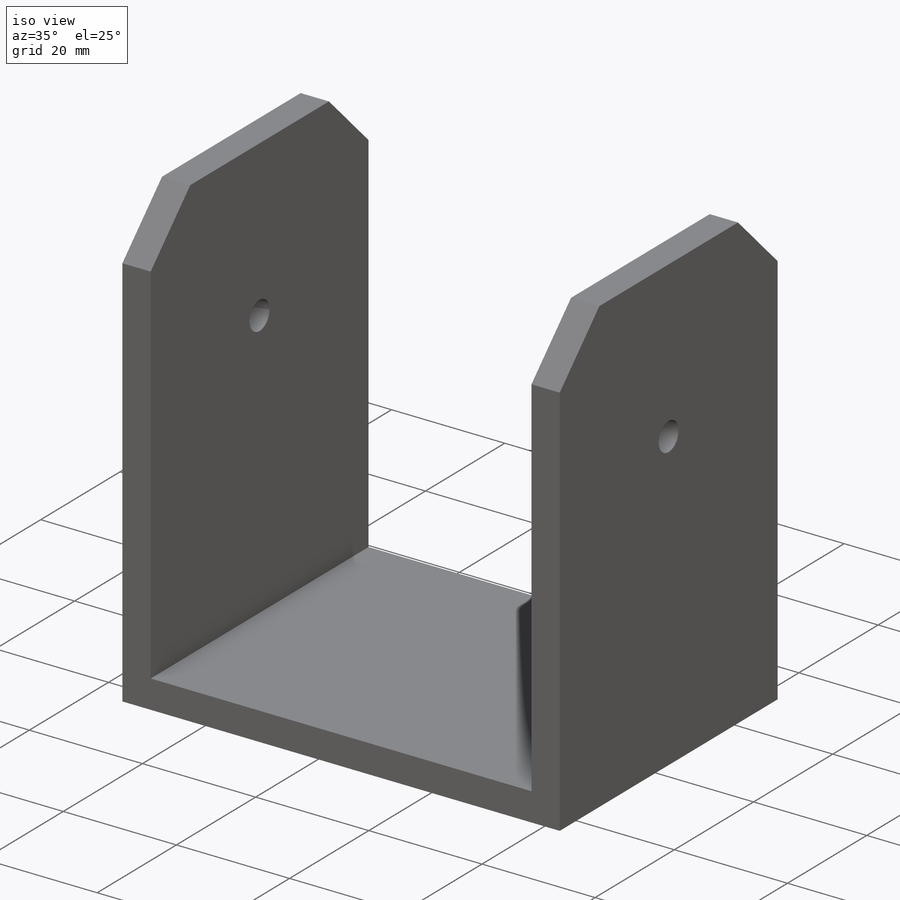
[diagram: iso view]
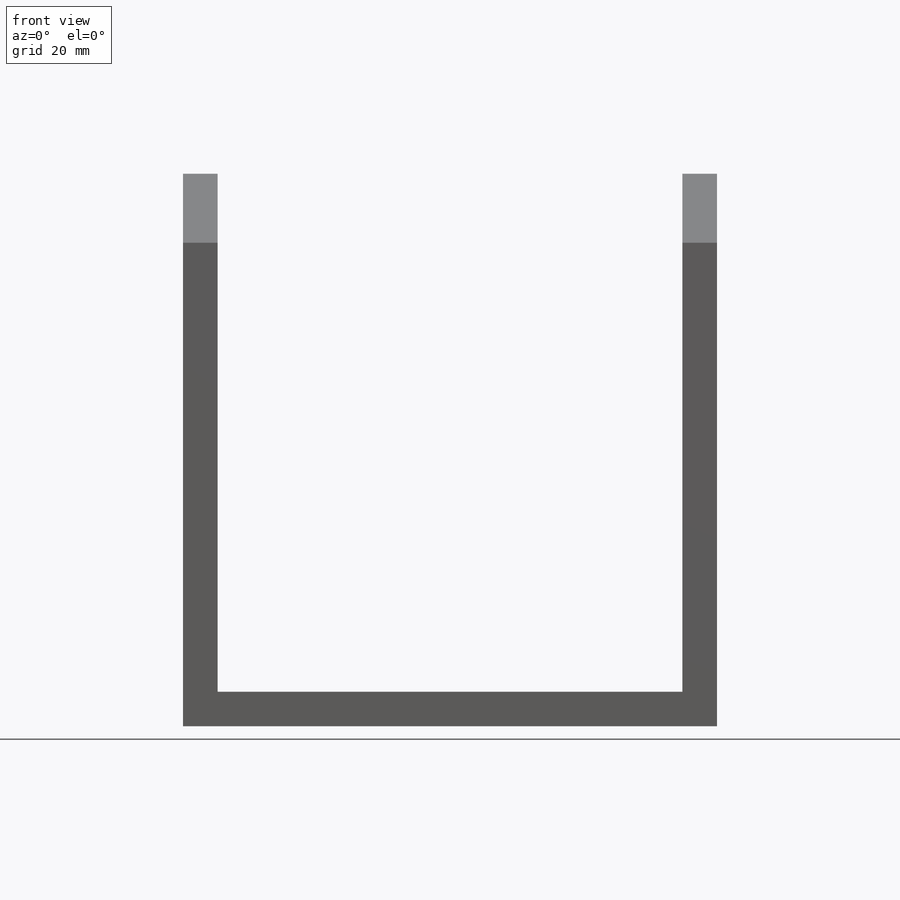
[diagram: front view]
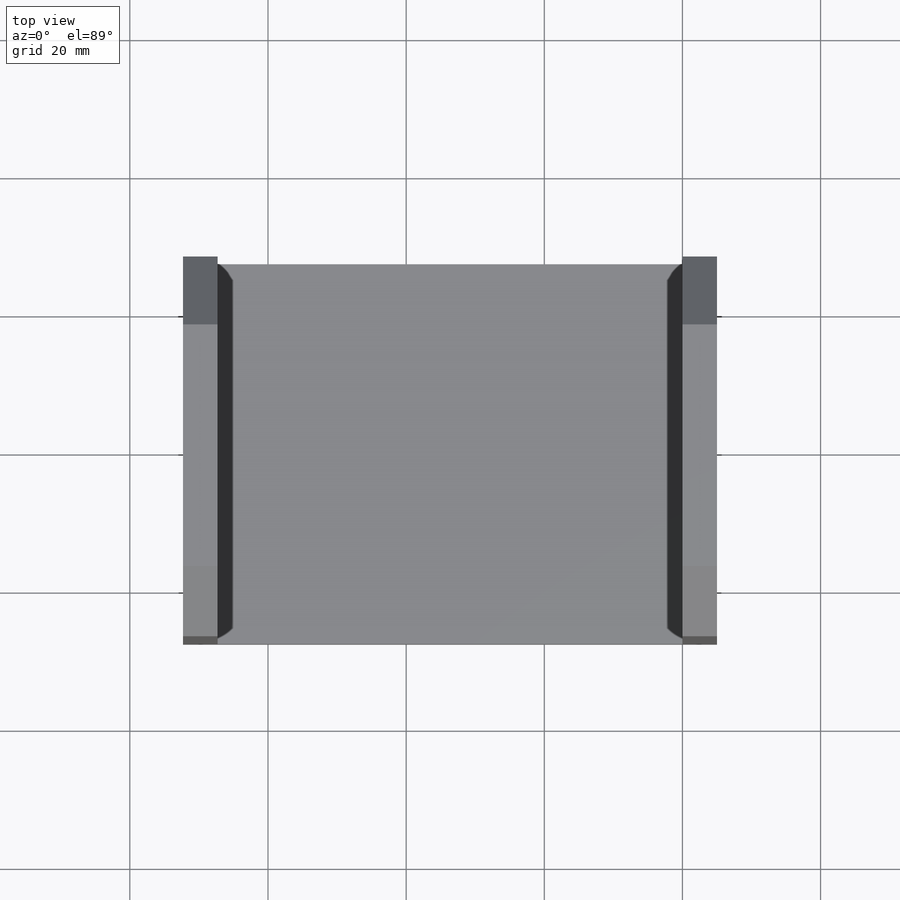
[diagram: top view]
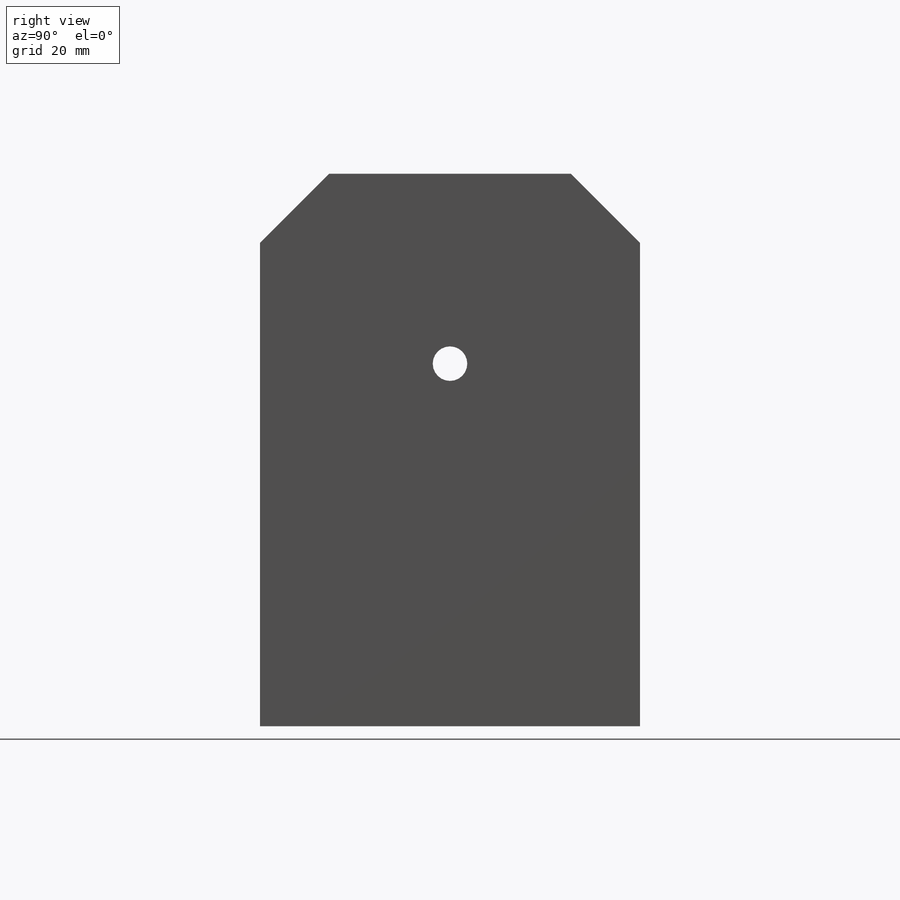
[diagram: right view]
SOLIDWORKS PART (.sldprt)
format: sldprt  version: not decoded by parser v0  size: 216,064 bytes
history: native  units: mm
features: sketch x7, extrude x4, plane x3, material x1, cut_extrude x1, hole x1 (+9 scaffold rows collapsed)
feature tree (26):
  scaffold x9  (default folders/planes/origin — collapsed)
  material  "Material <not specified>"
  plane  "Ön Düzlem"
  plane  "Üst Düzlem"
  plane  "Sağ Düzlem"
  sketch  "Sketch1"  dims[c1.D1=55.0mm c1.D2=55.0mm c1.D3=~8.949991mm c2.D3=45.0deg c2.D4=~8.157256mm c3.D4=45.0deg c3.D5=10.0mm c3.D6=10.0mm]
  extrude  "Boss-Extrude1"  Depth=5mm
  sketch  "Sketch2"
  extrude  "Boss-Extrude2"  Depth=25mm
  sketch  "Sketch3"  dims[D1=72.3mm D2=55.0mm]
  extrude  "Boss-Extrude3"  Depth=5mm
  sketch  "Sketch4"  dims[D1=75.0mm D2=55.0mm]
  extrude  "Boss-Extrude4"  Depth=5mm
  sketch  "Sketch5"
  cut_extrude  "Cut-Extrude1"  [1 undecoded]
  hole  "CSK for M2.5 Flat Head Machine Screw1"  Diameter=2.9mm Depth=5mm
  sketch  "Sketch7"
  sketch  "Sketch6"  dims[hole-wizard template sketch: 59 standard entries collapsed; hole parameters above]
decode coverage: 9 of 13 modeling features carry decoded parameters
note: ~ marks probable driven/reference dimensions
note: 1 parameter value undecoded
note: suppression state not decoded; provenance and decode notes live in map.json
